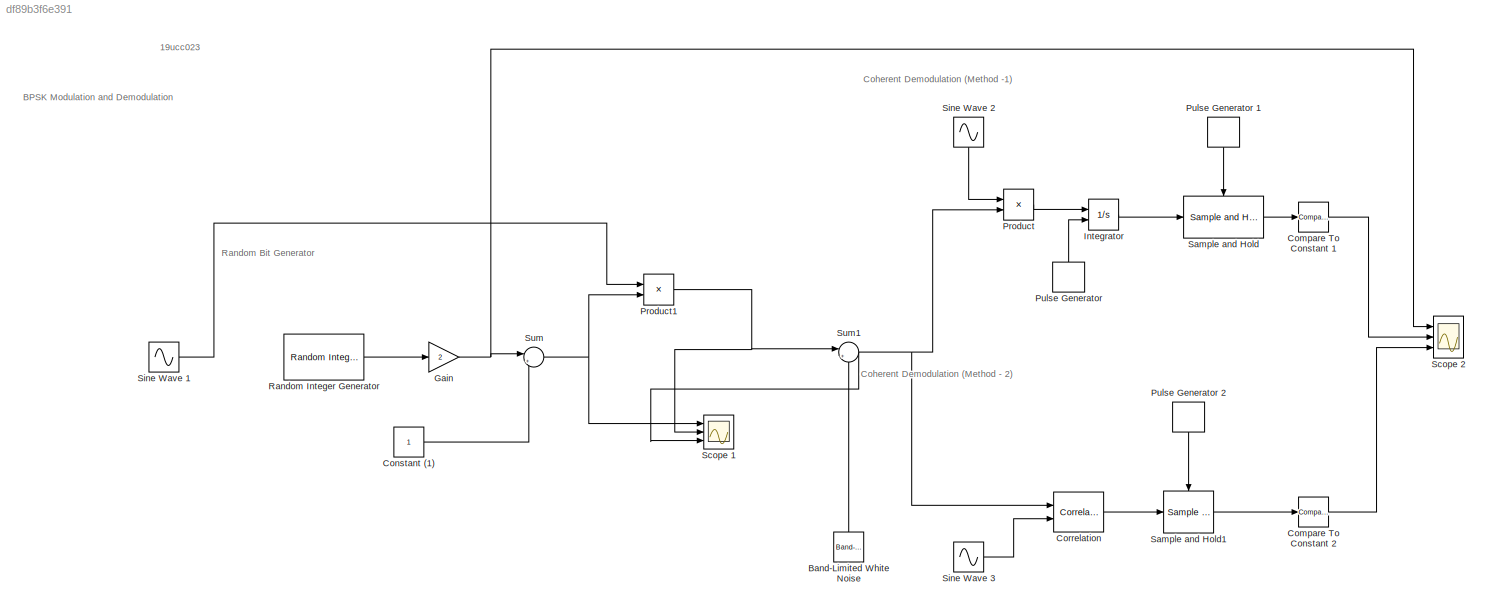
MODEL slx_df89b3f6e391
KIND model
CONFIG AbsTol = auto
CONFIG EnableMultiTasking = off
CONFIG FixedStep = auto
CONFIG MaxStep = auto
CONFIG MinStep = auto
CONFIG RelTol = 1e-3
CONFIG SampleTimeConstraint = Unconstrained
CONFIG SolverName = VariableStepAuto
CONFIG StartTime = 0.0
CONFIG StopTime = 10.0
BLOCK [Reference] Band-Limited White Noise  REF=simulink/Sources/Band-Limited
White Noise
  NameLocation = left
  Ports = [0, 1]
  SourceBlock = simulink/Sources/Band-Limited\nWhite Noise
  SourceProductBaseCode = SL
  SourceType = Band-Limited White Noise.
BLOCK [Reference] Compare To Constant 1  REF=simulink/Logic and Bit
Operations/Compare
To Constant
  Ports = [1, 1]
  SourceBlock = simulink/Logic and Bit\nOperations/Compare\nTo Constant
  SourceProductBaseCode = SL
  SourceType = Compare To Constant
BLOCK [Reference] Compare To Constant 2  REF=simulink/Logic and Bit
Operations/Compare
To Constant
  Ports = [1, 1]
  SourceBlock = simulink/Logic and Bit\nOperations/Compare\nTo Constant
  SourceProductBaseCode = SL
  SourceType = Compare To Constant
BLOCK [Constant] Constant (1)
BLOCK [Reference] Correlation  REF=dspstat3/Correlation
  Ports = [2, 1]
  SourceBlock = dspstat3/Correlation
  SourceProductBaseCode = DS
  SourceType = Correlation
BLOCK [Gain] Gain
  Gain = 2
BLOCK [Integrator] Integrator
  ExternalReset = rising
  Ports = [2, 1]
BLOCK [Product] Product
  Ports = [2, 1]
BLOCK [Product] Product1
  Ports = [2, 1]
BLOCK [DiscretePulseGenerator] Pulse Generator
  NameLocation = right
  Period = 0.5
  Ports = [0, 1]
  PulseType = Time based
  PulseWidth = 50
BLOCK [DiscretePulseGenerator] Pulse Generator 1
  NameLocation = left
  Period = 0.5
  Ports = [0, 1]
  PulseType = Time based
  PulseWidth = 50
BLOCK [DiscretePulseGenerator] Pulse Generator 2
  NameLocation = left
  Period = 0.5
  Ports = [0, 1]
  PulseType = Time based
  PulseWidth = 50
BLOCK [Reference] Random Integer Generator  REF=commrandsrc3/Random Integer
Generator
  Ports = [0, 1]
  SourceBlock = commrandsrc3/Random Integer\nGenerator
  SourceProductBaseCode = CM
  SourceType = Random Integer Generator
BLOCK [Reference] Sample and Hold  REF=dspsigops/Sample
and Hold
  Ports = [1, 1, 0, 1]
  SourceBlock = dspsigops/Sample\nand Hold
  SourceProductName = DSP System Toolbox
  SourceType = Sample and Hold
BLOCK [Reference] Sample and Hold1  REF=dspsigops/Sample
and Hold
  Ports = [1, 1, 0, 1]
  SourceBlock = dspsigops/Sample\nand Hold
  SourceProductName = DSP System Toolbox
  SourceType = Sample and Hold
BLOCK [Scope] Scope 1
  Floating = off
  NumInputPorts = 3
  Ports = [3]
  ScopeSpecificationString = Simulink.scopes.TimeScopeBlockCfg('CurrentConfiguration', extmgr.ConfigurationSet(extmgr.Configuration('Core','General UI',true),extmgr.Configuration('Core','Source UI',true),extmgr.Configuration('Sources','WiredSimulink',true,'DataLoggingVariableName','ScopeData1'),extmgr.Configuration('Visuals','Time Domain',true,'SerializedDisplays',{struct('MinYLimReal','-1.25','MaxYLimReal','1.25','YLabelReal...<+2724ch>
BLOCK [Scope] Scope 2
  Floating = off
  NumInputPorts = 3
  Ports = [3]
  ScopeSpecificationString = Simulink.scopes.TimeScopeBlockCfg('CurrentConfiguration', extmgr.ConfigurationSet(extmgr.Configuration('Core','General UI',true),extmgr.Configuration('Core','Source UI',true),extmgr.Configuration('Sources','WiredSimulink',true),extmgr.Configuration('Visuals','Time Domain',true,'SerializedDisplays',{struct('MinYLimReal','-0.25','MaxYLimReal','2.25','YLabelReal','','MinYLimMag','0.00000','MaxYLimMag...<+2709ch>
BLOCK [Sin] Sine Wave 1
  Frequency = 100
  Ports = [0, 1]
  SampleTime = 0.5
BLOCK [Sin] Sine Wave 2
  Frequency = 100
  NameLocation = right
  Ports = [0, 1]
  SampleTime = 0.5
BLOCK [Sin] Sine Wave 3
  Frequency = 100
  Ports = [0, 1]
  SampleTime = 0.5
BLOCK [Sum] Sum
  Inputs = |+-
  Ports = [2, 1]
BLOCK [Sum] Sum1
  Inputs = |++
  Ports = [2, 1]
ANNOTATION (root): Coherent Demodulation (Method - 2)
ANNOTATION (root): Coherent Demodulation (Method -1)
ANNOTATION (root): Random Bit Generator
ANNOTATION (root): BPSK Modulation and Demodulation
ANNOTATION (root): 19ucc023
LINE Band-Limited White Noise:1 -> Sum1:2
LINE Compare To Constant 1:1 -> Scope 2:2
LINE Compare To Constant 2:1 -> Scope 2:3
LINE Constant (1):1 -> Sum:2
LINE Correlation:1 -> Sample and Hold1:1
NET Gain:1 -> Scope 2:1, Sum:1
LINE Integrator:1 -> Sample and Hold:1
NET Product1:1 -> Scope 1:2, Sum1:1
LINE Product:1 -> Integrator:1
LINE Pulse Generator 1:1 -> Sample and Hold:trigger
LINE Pulse Generator 2:1 -> Sample and Hold1:trigger
LINE Pulse Generator:1 -> Integrator:2
LINE Random Integer Generator:1 -> Gain:1
LINE Sample and Hold1:1 -> Compare To Constant 2:1
LINE Sample and Hold:1 -> Compare To Constant 1:1
LINE Sine Wave 1:1 -> Product1:1
LINE Sine Wave 2:1 -> Product:1
LINE Sine Wave 3:1 -> Correlation:2
NET Sum1:1 -> Correlation:1, Product:2, Scope 1:3
NET Sum:1 -> Product1:2, Scope 1:1
note: NET lines group one-source signal fan-out (src -> all destinations, sorted); 1:1 wires keep LINE
